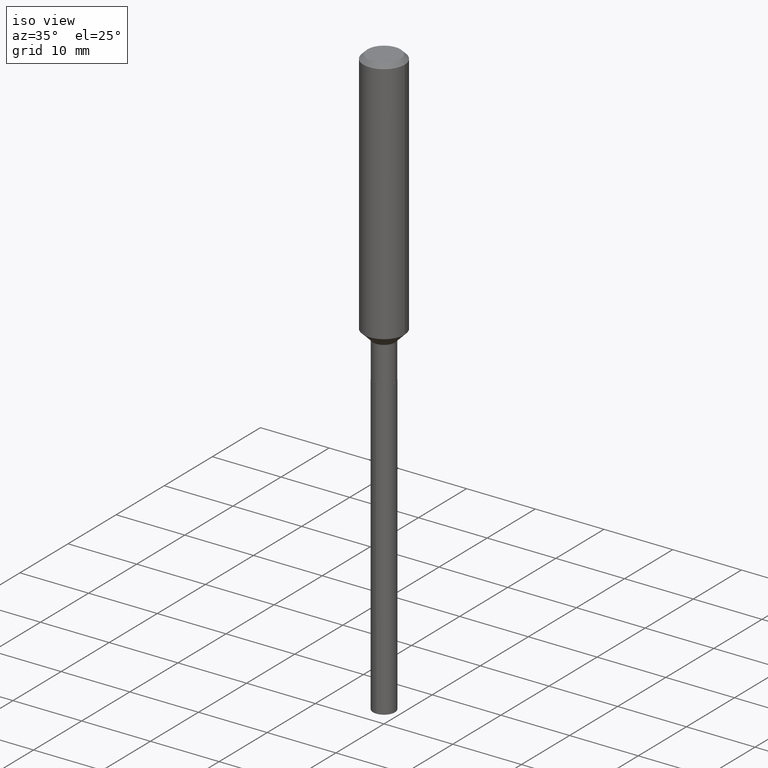
[diagram: clean part render]
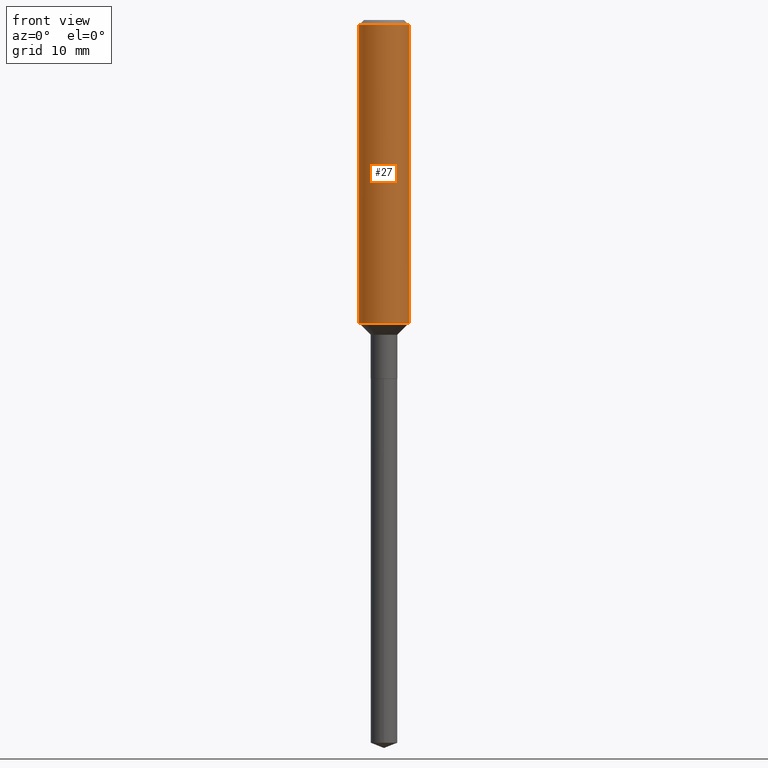
[diagram: tour spotlight — one face highlighted and labeled with its STEP entity id]
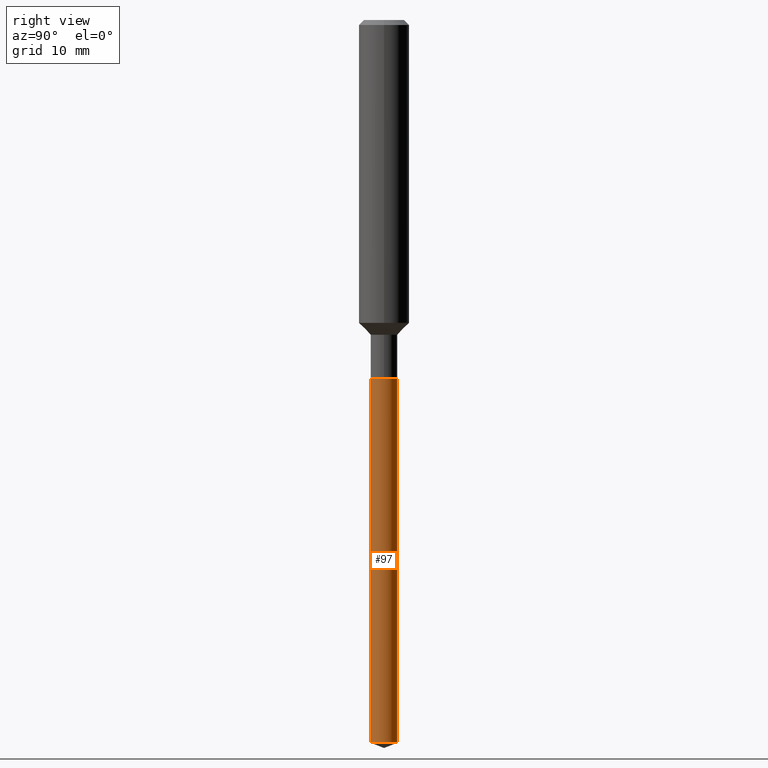
[diagram: tour spotlight — one face highlighted and labeled with its STEP entity id]
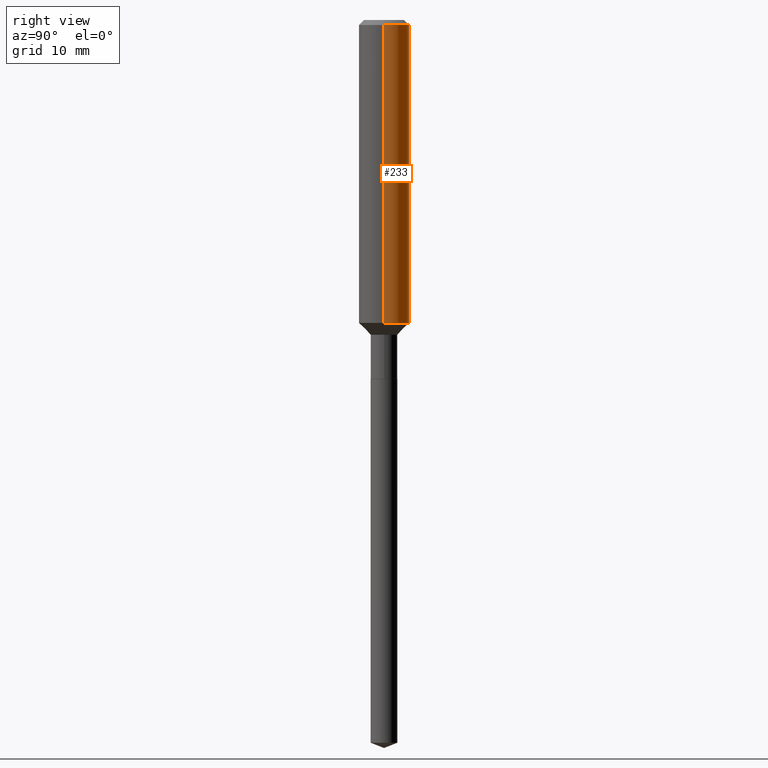
[diagram: tour spotlight — one face highlighted and labeled with its STEP entity id]
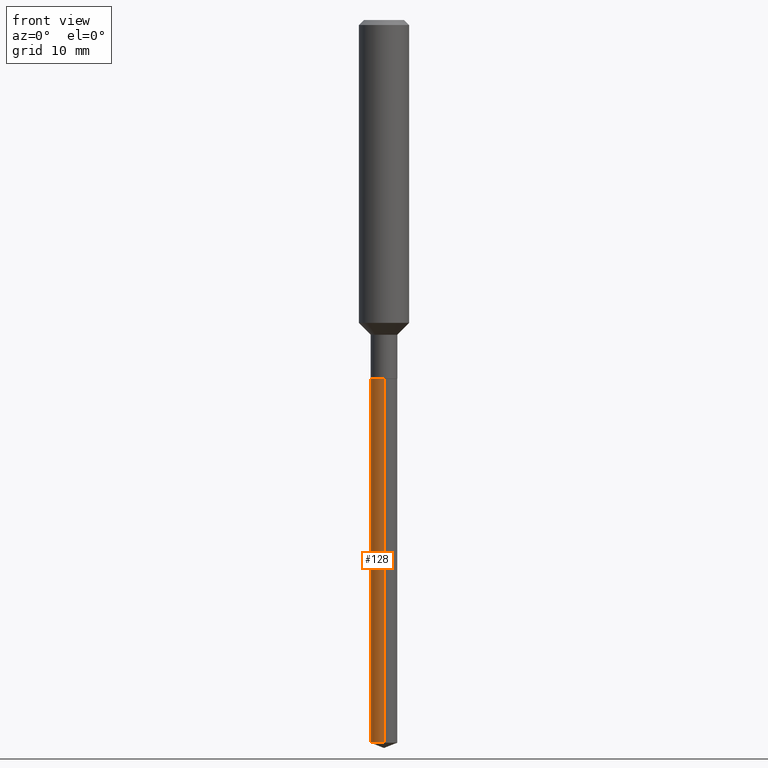
[diagram: tour spotlight — one face highlighted and labeled with its STEP entity id]
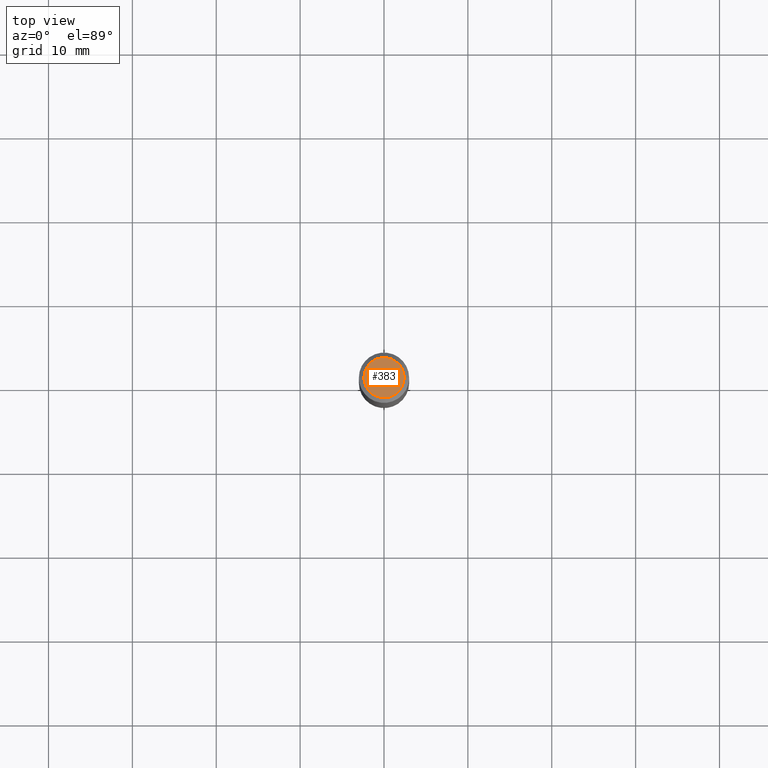
[diagram: tour spotlight — one face highlighted and labeled with its STEP entity id]
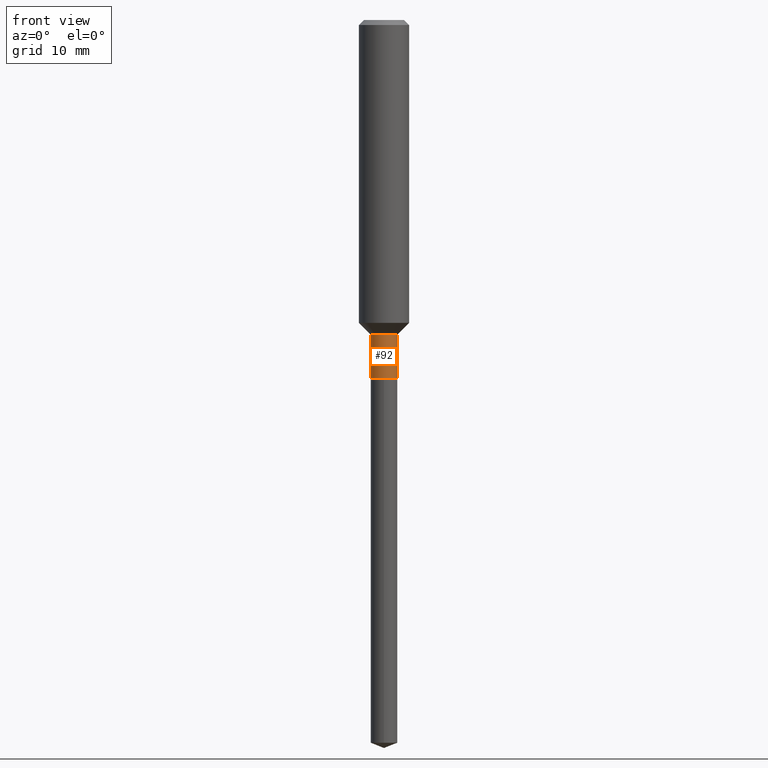
[diagram: tour spotlight — one face highlighted and labeled with its STEP entity id]
A machine part: a face-by-face anatomy tour. The part has 17 B-rep faces; the first image is the clean iso view, then the 6 largest visible faces are spotlighted one at a time (largest first), each with its STEP entity span.

Face 1 — front view, entity #27. In plain terms, the highlighted cylindrical surface (edge-blend (fillet) strip) has radius 2.9997 mm, axis along (-0, 0, 1).
Definition (entity closure, byte-faithful):
#17 = ORIENTED_EDGE ( 'NONE', *, *, #406, .T. ) ;
#27 = ADVANCED_FACE ( 'NONE', ( #365 ), #148, .T. ) ;
#35 = EDGE_CURVE ( 'NONE', #168, #176, #361, .T. ) ;
#36 = DIRECTION ( 'NONE',  ( -2.445468806185136597E-29, 3.491481338843145583E-15, 1.000000000000000000 ) ) ;
#37 = CARTESIAN_POINT ( 'NONE',  ( 0.1181000000000002048, -5.788177763534160480E-15, -1.421599999999998865 ) ) ;
#41 = CARTESIAN_POINT ( 'NONE',  ( 0.1181000000000001077, -8.246878922347488542E-16, 5.758764772215005345E-30 ) ) ;
#62 = ORIENTED_EDGE ( 'NONE', *, *, #35, .F. ) ;
#71 = DIRECTION ( 'NONE',  ( 1.000000000000000000, -6.982962677686266711E-15, 4.876176775795935793E-29 ) ) ;
#78 = DIRECTION ( 'NONE',  ( -2.445468806185136877E-29, 3.491481338843145188E-15, 1.000000000000000000 ) ) ;
#90 = EDGE_CURVE ( 'NONE', #141, #395, #422, .T. ) ;
#119 = CARTESIAN_POINT ( 'NONE',  ( 0.1180999999999999966, -9.071566814582237199E-16, -0.02362000000000014435 ) ) ;
#138 = CARTESIAN_POINT ( 'NONE',  ( 3.476478454872787479E-29, -4.963489871299412218E-15, -1.421599999999998865 ) ) ;
#141 = VERTEX_POINT ( 'NONE', #464 ) ;
#142 = LINE ( 'NONE', #408, #236 ) ;
#148 = CYLINDRICAL_SURFACE ( 'NONE', #349, 0.1181000000000001077 ) ;
#168 = VERTEX_POINT ( 'NONE', #263 ) ;
#176 = VERTEX_POINT ( 'NONE', #119 ) ;
#187 = LINE ( 'NONE', #41, #362 ) ;
#217 = CARTESIAN_POINT ( 'NONE',  ( 0.000000000000000000, 0.000000000000000000, 0.000000000000000000 ) ) ;
#221 = DIRECTION ( 'NONE',  ( 1.000000000000000000, -6.982962677686268288E-15, 0.000000000000000000 ) ) ;
#226 = ORIENTED_EDGE ( 'NONE', *, *, #358, .F. ) ;
#236 = VECTOR ( 'NONE', #78, 39.37007874015748143 ) ;
#263 = CARTESIAN_POINT ( 'NONE',  ( -0.1180999999999999966, -1.683828359328764063E-15, -0.02362000000000014435 ) ) ;
#294 = DIRECTION ( 'NONE',  ( -2.445468806185136597E-29, 3.491481338843145583E-15, 1.000000000000000000 ) ) ;
#349 = AXIS2_PLACEMENT_3D ( 'NONE', #217, #294, #71 ) ;
#352 = EDGE_LOOP ( 'NONE', ( #226, #353, #17, #62 ) ) ;
#353 = ORIENTED_EDGE ( 'NONE', *, *, #90, .T. ) ;
#358 = EDGE_CURVE ( 'NONE', #141, #168, #142, .T. ) ;
#360 = DIRECTION ( 'NONE',  ( -2.445468806185136877E-29, 3.491481338843145188E-15, 1.000000000000000000 ) ) ;
#361 = CIRCLE ( 'NONE', #402, 0.1180999999999999966 ) ;
#362 = VECTOR ( 'NONE', #360, 39.37007874015748143 ) ;
#363 = DIRECTION ( 'NONE',  ( -2.445468806185136597E-29, 3.491481338843145583E-15, 1.000000000000000000 ) ) ;
#365 = FACE_OUTER_BOUND ( 'NONE', #352, .T. ) ;
#395 = VERTEX_POINT ( 'NONE', #37 ) ;
#402 = AXIS2_PLACEMENT_3D ( 'NONE', #454, #36, #404 ) ;
#404 = DIRECTION ( 'NONE',  ( 1.000000000000000000, -6.982962677686266711E-15, 0.000000000000000000 ) ) ;
#406 = EDGE_CURVE ( 'NONE', #395, #176, #187, .T. ) ;
#408 = CARTESIAN_POINT ( 'NONE',  ( -0.1181000000000001077, 8.391509709326790846E-16, -5.809262341591049389E-30 ) ) ;
#422 = CIRCLE ( 'NONE', #428, 0.1181000000000002048 ) ;
#428 = AXIS2_PLACEMENT_3D ( 'NONE', #138, #363, #221 ) ;
#454 = CARTESIAN_POINT ( 'NONE',  ( 5.776197320209328408E-31, -8.246878922347560526E-17, -0.02362000000000014435 ) ) ;
#464 = CARTESIAN_POINT ( 'NONE',  ( -0.1181000000000002048, -4.124338900366731654E-15, -1.421599999999998865 ) ) ;

Face 2 — right view, entity #97. In plain terms, the highlighted cylindrical surface (edge-blend (fillet) strip) has radius 1.5875 mm, axis along (-0, 0, 1).
Definition (entity closure, byte-faithful):
#13 = DIRECTION ( 'NONE',  ( -2.449250081868980947E-29, 3.486066336847033927E-15, 1.000000000000000000 ) ) ;
#29 = CIRCLE ( 'NONE', #118, 0.06250000000000001388 ) ;
#42 = CARTESIAN_POINT ( 'NONE',  ( 4.440892098501460382E-16, 0.06249999999999415051, -1.683199999999999363 ) ) ;
#58 = VECTOR ( 'NONE', #260, 39.37007874015748143 ) ;
#67 = VERTEX_POINT ( 'NONE', #212 ) ;
#85 = DIRECTION ( 'NONE',  ( -6.982962677686265922E-15, -1.000000000000000000, 4.370956789862820361E-15 ) ) ;
#97 = ADVANCED_FACE ( 'NONE', ( #232 ), #338, .T. ) ;
#102 = CARTESIAN_POINT ( 'NONE',  ( 8.302423807474699967E-29, -1.183517832631787681E-14, -3.392380595274065325 ) ) ;
#104 = VERTEX_POINT ( 'NONE', #417 ) ;
#108 = DIRECTION ( 'NONE',  ( -2.449250081868980947E-29, 3.486066336847034322E-15, 1.000000000000000000 ) ) ;
#112 = DIRECTION ( 'NONE',  ( -2.449250081868980947E-29, 3.486066336847033927E-15, 1.000000000000000000 ) ) ;
#118 = AXIS2_PLACEMENT_3D ( 'NONE', #285, #372, #252 ) ;
#134 = ORIENTED_EDGE ( 'NONE', *, *, #229, .T. ) ;
#136 = VERTEX_POINT ( 'NONE', #42 ) ;
#150 = CARTESIAN_POINT ( 'NONE',  ( -4.364351673553505500E-16, -0.06250000000000588418, -1.683199999999998919 ) ) ;
#162 = CARTESIAN_POINT ( 'NONE',  ( 4.116213094570819802E-29, -5.876861389540779961E-15, -1.683199999999999141 ) ) ;
#198 = LINE ( 'NONE', #346, #58 ) ;
#206 = CIRCLE ( 'NONE', #393, 0.06250000000000001388 ) ;
#210 = CARTESIAN_POINT ( 'NONE',  ( 4.440892098501455452E-16, 0.06249999999998816919, -3.392380595274065325 ) ) ;
#212 = CARTESIAN_POINT ( 'NONE',  ( -4.364351673553505500E-16, -0.06250000000000588418, -1.683199999999998919 ) ) ;
#229 = EDGE_CURVE ( 'NONE', #440, #136, #198, .T. ) ;
#232 = FACE_OUTER_BOUND ( 'NONE', #312, .T. ) ;
#235 = AXIS2_PLACEMENT_3D ( 'NONE', #162, #13, #85 ) ;
#252 = DIRECTION ( 'NONE',  ( -6.982962677686265922E-15, -1.000000000000000000, 4.370956789862820361E-15 ) ) ;
#255 = DIRECTION ( 'NONE',  ( -6.982962677686265133E-15, -1.000000000000000000, 0.000000000000000000 ) ) ;
#260 = DIRECTION ( 'NONE',  ( -2.449250081868980947E-29, 3.486066336847034322E-15, 1.000000000000000000 ) ) ;
#265 = ORIENTED_EDGE ( 'NONE', *, *, #339, .F. ) ;
#277 = ORIENTED_EDGE ( 'NONE', *, *, #431, .F. ) ;
#285 = CARTESIAN_POINT ( 'NONE',  ( 4.116213094570819802E-29, -5.876861389540779961E-15, -1.683199999999999141 ) ) ;
#312 = EDGE_LOOP ( 'NONE', ( #331, #134, #265, #277 ) ) ;
#331 = ORIENTED_EDGE ( 'NONE', *, *, #344, .T. ) ;
#338 = CYLINDRICAL_SURFACE ( 'NONE', #235, 0.06250000000000001388 ) ;
#339 = EDGE_CURVE ( 'NONE', #67, #136, #29, .T. ) ;
#344 = EDGE_CURVE ( 'NONE', #104, #440, #206, .T. ) ;
#346 = CARTESIAN_POINT ( 'NONE',  ( 4.440892098501038342E-16, 0.06249999999999414357, -1.683199999999999363 ) ) ;
#372 = DIRECTION ( 'NONE',  ( -2.449250081868980947E-29, 3.486066336847033927E-15, 1.000000000000000000 ) ) ;
#393 = AXIS2_PLACEMENT_3D ( 'NONE', #102, #112, #255 ) ;
#414 = VECTOR ( 'NONE', #108, 39.37007874015748143 ) ;
#417 = CARTESIAN_POINT ( 'NONE',  ( -4.364351673553084939E-16, -0.06250000000001182388, -3.392380595274065325 ) ) ;
#431 = EDGE_CURVE ( 'NONE', #104, #67, #444, .T. ) ;
#440 = VERTEX_POINT ( 'NONE', #210 ) ;
#444 = LINE ( 'NONE', #150, #414 ) ;

Face 3 — right view, entity #233. In plain terms, the highlighted cylindrical surface (edge-blend (fillet) strip) has radius 2.9997 mm, axis along (-0, 0, 1).
Definition (entity closure, byte-faithful):
#19 = AXIS2_PLACEMENT_3D ( 'NONE', #193, #341, #201 ) ;
#37 = CARTESIAN_POINT ( 'NONE',  ( 0.1181000000000002048, -5.788177763534160480E-15, -1.421599999999998865 ) ) ;
#41 = CARTESIAN_POINT ( 'NONE',  ( 0.1181000000000001077, -8.246878922347488542E-16, 5.758764772215005345E-30 ) ) ;
#46 = CYLINDRICAL_SURFACE ( 'NONE', #350, 0.1181000000000001077 ) ;
#73 = CIRCLE ( 'NONE', #385, 0.1180999999999999966 ) ;
#78 = DIRECTION ( 'NONE',  ( -2.445468806185136877E-29, 3.491481338843145188E-15, 1.000000000000000000 ) ) ;
#84 = CARTESIAN_POINT ( 'NONE',  ( 0.000000000000000000, 0.000000000000000000, 0.000000000000000000 ) ) ;
#98 = EDGE_LOOP ( 'NONE', ( #310, #468, #463, #237 ) ) ;
#119 = CARTESIAN_POINT ( 'NONE',  ( 0.1180999999999999966, -9.071566814582237199E-16, -0.02362000000000014435 ) ) ;
#141 = VERTEX_POINT ( 'NONE', #464 ) ;
#142 = LINE ( 'NONE', #408, #236 ) ;
#168 = VERTEX_POINT ( 'NONE', #263 ) ;
#176 = VERTEX_POINT ( 'NONE', #119 ) ;
#187 = LINE ( 'NONE', #41, #362 ) ;
#192 = DIRECTION ( 'NONE',  ( 1.000000000000000000, -6.982962677686266711E-15, 4.876176775795935793E-29 ) ) ;
#193 = CARTESIAN_POINT ( 'NONE',  ( 3.476478454872787479E-29, -4.963489871299412218E-15, -1.421599999999998865 ) ) ;
#201 = DIRECTION ( 'NONE',  ( 1.000000000000000000, -6.982962677686268288E-15, 0.000000000000000000 ) ) ;
#233 = ADVANCED_FACE ( 'NONE', ( #413 ), #46, .T. ) ;
#236 = VECTOR ( 'NONE', #78, 39.37007874015748143 ) ;
#237 = ORIENTED_EDGE ( 'NONE', *, *, #406, .F. ) ;
#238 = EDGE_CURVE ( 'NONE', #395, #141, #466, .T. ) ;
#263 = CARTESIAN_POINT ( 'NONE',  ( -0.1180999999999999966, -1.683828359328764063E-15, -0.02362000000000014435 ) ) ;
#267 = DIRECTION ( 'NONE',  ( 1.000000000000000000, -6.982962677686266711E-15, 0.000000000000000000 ) ) ;
#310 = ORIENTED_EDGE ( 'NONE', *, *, #238, .T. ) ;
#341 = DIRECTION ( 'NONE',  ( -2.445468806185136597E-29, 3.491481338843145583E-15, 1.000000000000000000 ) ) ;
#350 = AXIS2_PLACEMENT_3D ( 'NONE', #84, #373, #192 ) ;
#358 = EDGE_CURVE ( 'NONE', #141, #168, #142, .T. ) ;
#360 = DIRECTION ( 'NONE',  ( -2.445468806185136877E-29, 3.491481338843145188E-15, 1.000000000000000000 ) ) ;
#362 = VECTOR ( 'NONE', #360, 39.37007874015748143 ) ;
#373 = DIRECTION ( 'NONE',  ( -2.445468806185136597E-29, 3.491481338843145583E-15, 1.000000000000000000 ) ) ;
#385 = AXIS2_PLACEMENT_3D ( 'NONE', #459, #462, #267 ) ;
#395 = VERTEX_POINT ( 'NONE', #37 ) ;
#406 = EDGE_CURVE ( 'NONE', #395, #176, #187, .T. ) ;
#408 = CARTESIAN_POINT ( 'NONE',  ( -0.1181000000000001077, 8.391509709326790846E-16, -5.809262341591049389E-30 ) ) ;
#413 = FACE_OUTER_BOUND ( 'NONE', #98, .T. ) ;
#459 = CARTESIAN_POINT ( 'NONE',  ( 5.776197320209328408E-31, -8.246878922347560526E-17, -0.02362000000000014435 ) ) ;
#462 = DIRECTION ( 'NONE',  ( -2.445468806185136597E-29, 3.491481338843145583E-15, 1.000000000000000000 ) ) ;
#463 = ORIENTED_EDGE ( 'NONE', *, *, #474, .F. ) ;
#464 = CARTESIAN_POINT ( 'NONE',  ( -0.1181000000000002048, -4.124338900366731654E-15, -1.421599999999998865 ) ) ;
#466 = CIRCLE ( 'NONE', #19, 0.1181000000000002048 ) ;
#468 = ORIENTED_EDGE ( 'NONE', *, *, #358, .T. ) ;
#474 = EDGE_CURVE ( 'NONE', #176, #168, #73, .T. ) ;

Face 4 — front view, entity #128. In plain terms, the highlighted cylindrical surface (edge-blend (fillet) strip) has radius 1.5875 mm, axis along (-0, 0, 1).
Definition (entity closure, byte-faithful):
#5 = DIRECTION ( 'NONE',  ( -2.449250081868980947E-29, 3.486066336847033927E-15, 1.000000000000000000 ) ) ;
#39 = CIRCLE ( 'NONE', #489, 0.06250000000000001388 ) ;
#42 = CARTESIAN_POINT ( 'NONE',  ( 4.440892098501460382E-16, 0.06249999999999415051, -1.683199999999999363 ) ) ;
#58 = VECTOR ( 'NONE', #260, 39.37007874015748143 ) ;
#59 = EDGE_LOOP ( 'NONE', ( #157, #205, #427, #166 ) ) ;
#67 = VERTEX_POINT ( 'NONE', #212 ) ;
#104 = VERTEX_POINT ( 'NONE', #417 ) ;
#108 = DIRECTION ( 'NONE',  ( -2.449250081868980947E-29, 3.486066336847034322E-15, 1.000000000000000000 ) ) ;
#114 = CARTESIAN_POINT ( 'NONE',  ( 4.116213094570819802E-29, -5.876861389540779961E-15, -1.683199999999999141 ) ) ;
#116 = AXIS2_PLACEMENT_3D ( 'NONE', #381, #5, #343 ) ;
#128 = ADVANCED_FACE ( 'NONE', ( #460 ), #227, .T. ) ;
#130 = EDGE_CURVE ( 'NONE', #440, #104, #199, .T. ) ;
#136 = VERTEX_POINT ( 'NONE', #42 ) ;
#150 = CARTESIAN_POINT ( 'NONE',  ( -4.364351673553505500E-16, -0.06250000000000588418, -1.683199999999998919 ) ) ;
#157 = ORIENTED_EDGE ( 'NONE', *, *, #229, .F. ) ;
#166 = ORIENTED_EDGE ( 'NONE', *, *, #439, .F. ) ;
#198 = LINE ( 'NONE', #346, #58 ) ;
#199 = CIRCLE ( 'NONE', #116, 0.06250000000000001388 ) ;
#205 = ORIENTED_EDGE ( 'NONE', *, *, #130, .T. ) ;
#210 = CARTESIAN_POINT ( 'NONE',  ( 4.440892098501455452E-16, 0.06249999999998816919, -3.392380595274065325 ) ) ;
#212 = CARTESIAN_POINT ( 'NONE',  ( -4.364351673553505500E-16, -0.06250000000000588418, -1.683199999999998919 ) ) ;
#225 = DIRECTION ( 'NONE',  ( -6.982962677686265922E-15, -1.000000000000000000, 4.370956789862820361E-15 ) ) ;
#227 = CYLINDRICAL_SURFACE ( 'NONE', #465, 0.06250000000000001388 ) ;
#229 = EDGE_CURVE ( 'NONE', #440, #136, #198, .T. ) ;
#258 = DIRECTION ( 'NONE',  ( -2.449250081868980947E-29, 3.486066336847033927E-15, 1.000000000000000000 ) ) ;
#260 = DIRECTION ( 'NONE',  ( -2.449250081868980947E-29, 3.486066336847034322E-15, 1.000000000000000000 ) ) ;
#266 = CARTESIAN_POINT ( 'NONE',  ( 4.116213094570819802E-29, -5.876861389540779961E-15, -1.683199999999999141 ) ) ;
#343 = DIRECTION ( 'NONE',  ( -6.982962677686265133E-15, -1.000000000000000000, 0.000000000000000000 ) ) ;
#346 = CARTESIAN_POINT ( 'NONE',  ( 4.440892098501038342E-16, 0.06249999999999414357, -1.683199999999999363 ) ) ;
#381 = CARTESIAN_POINT ( 'NONE',  ( 8.302423807474699967E-29, -1.183517832631787681E-14, -3.392380595274065325 ) ) ;
#400 = DIRECTION ( 'NONE',  ( -6.982962677686265922E-15, -1.000000000000000000, 4.370956789862820361E-15 ) ) ;
#414 = VECTOR ( 'NONE', #108, 39.37007874015748143 ) ;
#417 = CARTESIAN_POINT ( 'NONE',  ( -4.364351673553084939E-16, -0.06250000000001182388, -3.392380595274065325 ) ) ;
#420 = DIRECTION ( 'NONE',  ( -2.449250081868980947E-29, 3.486066336847033927E-15, 1.000000000000000000 ) ) ;
#427 = ORIENTED_EDGE ( 'NONE', *, *, #431, .T. ) ;
#431 = EDGE_CURVE ( 'NONE', #104, #67, #444, .T. ) ;
#439 = EDGE_CURVE ( 'NONE', #136, #67, #39, .T. ) ;
#440 = VERTEX_POINT ( 'NONE', #210 ) ;
#444 = LINE ( 'NONE', #150, #414 ) ;
#460 = FACE_OUTER_BOUND ( 'NONE', #59, .T. ) ;
#465 = AXIS2_PLACEMENT_3D ( 'NONE', #266, #420, #225 ) ;
#489 = AXIS2_PLACEMENT_3D ( 'NONE', #114, #258, #400 ) ;

Face 5 — top view, entity #383. In plain terms, the highlighted planar face has unit normal (0, -0, -1).
Definition (entity closure, byte-faithful):
#1 = DIRECTION ( 'NONE',  ( -2.445468806185136597E-29, 3.491481338843145583E-15, 1.000000000000000000 ) ) ;
#11 = CARTESIAN_POINT ( 'NONE',  ( 0.09447999999999998066, -7.704367267948738690E-16, -2.700101262759583929E-17 ) ) ;
#15 = CARTESIAN_POINT ( 'NONE',  ( 6.603013411620882309E-46, -9.427353171913646324E-32, -2.700101262760083747E-17 ) ) ;
#53 = CIRCLE ( 'NONE', #300, 0.09447999999999998066 ) ;
#69 = DIRECTION ( 'NONE',  ( 1.000000000000000000, -6.982962677686267499E-15, 4.875432709231658792E-29 ) ) ;
#91 = CARTESIAN_POINT ( 'NONE',  ( -0.09447999999999998066, 7.009847083995354710E-16, -2.700101262760559836E-17 ) ) ;
#95 = VERTEX_POINT ( 'NONE', #91 ) ;
#124 = AXIS2_PLACEMENT_3D ( 'NONE', #190, #329, #287 ) ;
#152 = CARTESIAN_POINT ( 'NONE',  ( 6.603013411620882309E-46, -9.427353171913646324E-32, -2.700101262760083747E-17 ) ) ;
#164 = DIRECTION ( 'NONE',  ( -2.445468806185136597E-29, 3.491481338843145583E-15, 1.000000000000000000 ) ) ;
#174 = VERTEX_POINT ( 'NONE', #11 ) ;
#190 = CARTESIAN_POINT ( 'NONE',  ( 3.301506705810441154E-46, -4.713676585956823162E-32, -1.350050631380041873E-17 ) ) ;
#222 = FACE_OUTER_BOUND ( 'NONE', #432, .T. ) ;
#231 = CIRCLE ( 'NONE', #275, 0.09447999999999998066 ) ;
#272 = EDGE_CURVE ( 'NONE', #174, #95, #53, .T. ) ;
#275 = AXIS2_PLACEMENT_3D ( 'NONE', #152, #1, #69 ) ;
#287 = DIRECTION ( 'NONE',  ( -1.000000000000000000, 6.982962677686265922E-15, -4.876176775795935793E-29 ) ) ;
#296 = DIRECTION ( 'NONE',  ( 1.000000000000000000, -6.982962677686267499E-15, 4.875432709231658792E-29 ) ) ;
#300 = AXIS2_PLACEMENT_3D ( 'NONE', #15, #164, #296 ) ;
#329 = DIRECTION ( 'NONE',  ( 2.438088387897960049E-29, -3.491481338843145188E-15, -1.000000000000000000 ) ) ;
#370 = ORIENTED_EDGE ( 'NONE', *, *, #425, .T. ) ;
#383 = ADVANCED_FACE ( 'NONE', ( #222 ), #398, .F. ) ;
#397 = ORIENTED_EDGE ( 'NONE', *, *, #272, .T. ) ;
#398 = PLANE ( 'NONE',  #124 ) ;
#425 = EDGE_CURVE ( 'NONE', #95, #174, #231, .T. ) ;
#432 = EDGE_LOOP ( 'NONE', ( #370, #397 ) ) ;

Face 6 — front view, entity #92. In plain terms, the highlighted cylindrical surface (edge-blend (fillet) strip) has radius 1.5875 mm, axis along (-0, 0, 1).
Definition (entity closure, byte-faithful):
#12 = CARTESIAN_POINT ( 'NONE',  ( 3.612446520496680883E-29, -5.157616233739090514E-15, -1.477199999999998958 ) ) ;
#23 = ORIENTED_EDGE ( 'NONE', *, *, #194, .T. ) ;
#31 = CYLINDRICAL_SURFACE ( 'NONE', #268, 0.06249999999999981265 ) ;
#38 = AXIS2_PLACEMENT_3D ( 'NONE', #12, #458, #302 ) ;
#49 = EDGE_CURVE ( 'NONE', #64, #111, #292, .T. ) ;
#55 = DIRECTION ( 'NONE',  ( -2.445468806185136597E-29, 3.491481338843145583E-15, 1.000000000000000000 ) ) ;
#64 = VERTEX_POINT ( 'NONE', #183 ) ;
#79 = CARTESIAN_POINT ( 'NONE',  ( -0.06249999999999981265, 4.440892098500612850E-16, -3.074334431409306655E-30 ) ) ;
#88 = CARTESIAN_POINT ( 'NONE',  ( -0.06249999999999981265, -5.072276731455163842E-15, -1.477199999999998958 ) ) ;
#92 = ADVANCED_FACE ( 'NONE', ( #284 ), #31, .T. ) ;
#105 = CARTESIAN_POINT ( 'NONE',  ( 0.06249999999999981265, -5.594051401094481395E-15, -1.477199999999998958 ) ) ;
#111 = VERTEX_POINT ( 'NONE', #88 ) ;
#117 = EDGE_CURVE ( 'NONE', #131, #438, #122, .T. ) ;
#122 = LINE ( 'NONE', #424, #188 ) ;
#131 = VERTEX_POINT ( 'NONE', #377 ) ;
#146 = VECTOR ( 'NONE', #209, 39.37007874015748143 ) ;
#160 = CARTESIAN_POINT ( 'NONE',  ( 4.114990360167727561E-29, -5.875115648871358458E-15, -1.682699999999999196 ) ) ;
#167 = CIRCLE ( 'NONE', #38, 0.06249999999999981265 ) ;
#171 = EDGE_CURVE ( 'NONE', #111, #438, #167, .T. ) ;
#181 = CARTESIAN_POINT ( 'NONE',  ( 0.000000000000000000, 0.000000000000000000, 0.000000000000000000 ) ) ;
#183 = CARTESIAN_POINT ( 'NONE',  ( -0.06249999999999981265, -5.072276731455163842E-15, -1.682699999999999196 ) ) ;
#188 = VECTOR ( 'NONE', #197, 39.37007874015748143 ) ;
#194 = EDGE_CURVE ( 'NONE', #64, #131, #230, .T. ) ;
#196 = ORIENTED_EDGE ( 'NONE', *, *, #171, .F. ) ;
#197 = DIRECTION ( 'NONE',  ( -2.445468806185136877E-29, 3.491481338843145188E-15, 1.000000000000000000 ) ) ;
#209 = DIRECTION ( 'NONE',  ( -2.445468806185136877E-29, 3.491481338843145188E-15, 1.000000000000000000 ) ) ;
#219 = ORIENTED_EDGE ( 'NONE', *, *, #49, .F. ) ;
#230 = CIRCLE ( 'NONE', #334, 0.06249999999999981265 ) ;
#268 = AXIS2_PLACEMENT_3D ( 'NONE', #181, #324, #483 ) ;
#284 = FACE_OUTER_BOUND ( 'NONE', #355, .T. ) ;
#292 = LINE ( 'NONE', #79, #146 ) ;
#302 = DIRECTION ( 'NONE',  ( 1.000000000000000000, -6.982962677686269077E-15, 0.000000000000000000 ) ) ;
#307 = DIRECTION ( 'NONE',  ( 1.000000000000000000, -6.982962677686269077E-15, 0.000000000000000000 ) ) ;
#324 = DIRECTION ( 'NONE',  ( -2.445468806185136597E-29, 3.491481338843145583E-15, 1.000000000000000000 ) ) ;
#334 = AXIS2_PLACEMENT_3D ( 'NONE', #160, #55, #307 ) ;
#340 = ORIENTED_EDGE ( 'NONE', *, *, #117, .T. ) ;
#355 = EDGE_LOOP ( 'NONE', ( #219, #23, #340, #196 ) ) ;
#377 = CARTESIAN_POINT ( 'NONE',  ( 0.06249999999999981265, -6.311550816226749338E-15, -1.682699999999999196 ) ) ;
#424 = CARTESIAN_POINT ( 'NONE',  ( 0.06249999999999981265, -4.364351673553903382E-16, 3.047610484872450762E-30 ) ) ;
#438 = VERTEX_POINT ( 'NONE', #105 ) ;
#458 = DIRECTION ( 'NONE',  ( -2.445468806185136597E-29, 3.491481338843145583E-15, 1.000000000000000000 ) ) ;
#483 = DIRECTION ( 'NONE',  ( 1.000000000000000000, -6.982962677686266711E-15, 4.876176775795935793E-29 ) ) ;